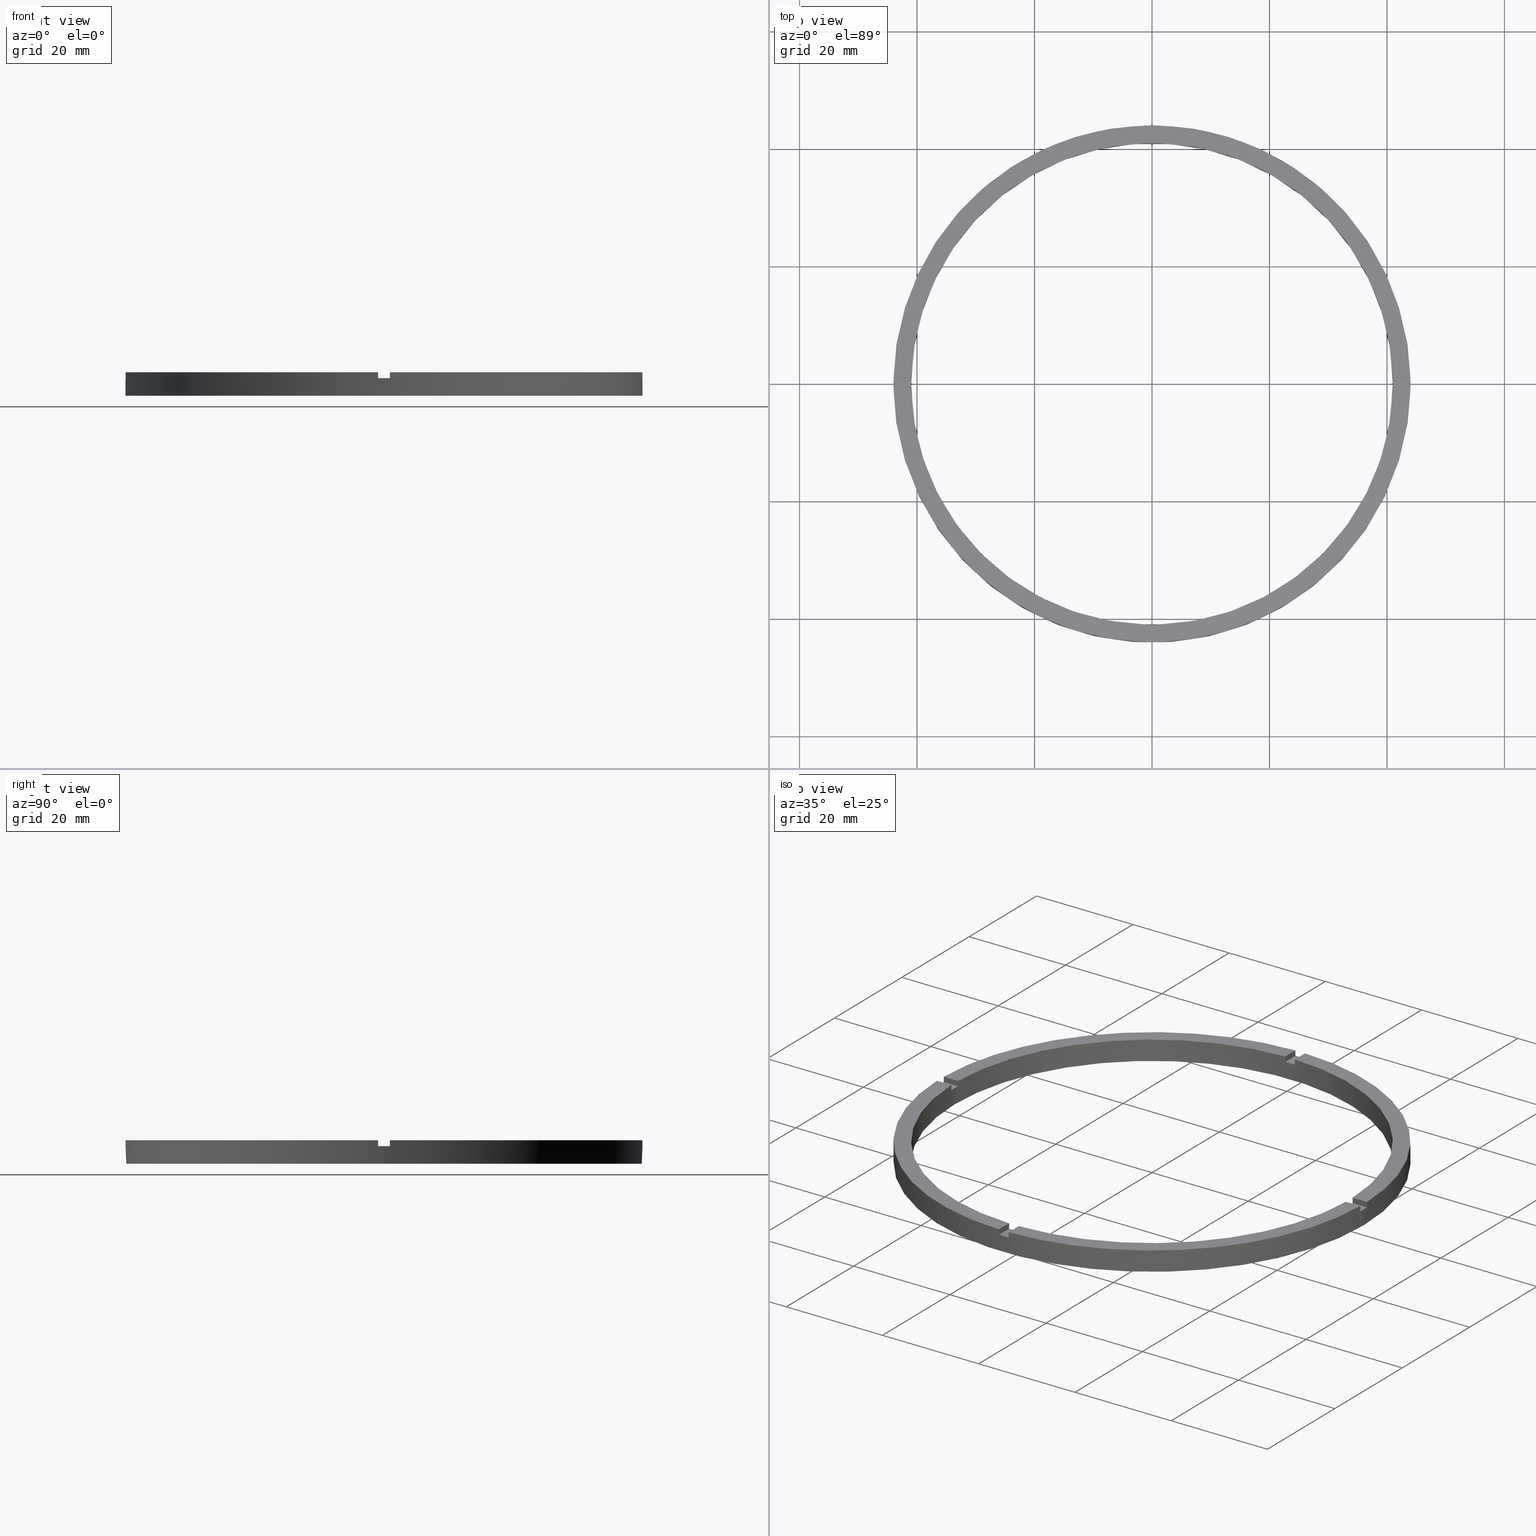
[diagram: canonical four-view strip — front | top / right | iso, engineering-drawing reading convention]
A machine part, canonical four-view strip (front | top / right | iso — engineering-drawing reading convention). The complete STEP part file that produces these views, byte-faithful:
ISO-10303-21;
HEADER;
FILE_DESCRIPTION (( 'STEP AP203' ),
    '1' );
FILE_NAME ('514180.step',
    '2024-12-26T02:45:21',
    ( 'MSI' ),
    ( '' ),
    'SwSTEP 2.0',
    'SolidWorks 2020',
    '' );
FILE_SCHEMA (( 'CONFIG_CONTROL_DESIGN' ));
ENDSEC;

DATA;
#1 = ORIENTED_EDGE ( 'NONE', *, *, #777, .T. ) ;
#2 = CIRCLE ( 'NONE', #607, 41.00000000000000000 ) ;
#3 = VERTEX_POINT ( 'NONE', #537 ) ;
#4 = EDGE_CURVE ( 'NONE', #451, #695, #588, .T. ) ;
#5 = ORIENTED_EDGE ( 'NONE', *, *, #253, .T. ) ;
#6 = AXIS2_PLACEMENT_3D ( 'NONE', #277, #331, #326 ) ;
#7 = FACE_OUTER_BOUND ( 'NONE', #704, .T. ) ;
#8 = CARTESIAN_POINT ( 'NONE',  ( 40.98780306383839189, -1.000000000000156541, 4.000000000000000000 ) ) ;
#9 = VERTEX_POINT ( 'NONE', #522 ) ;
#10 = EDGE_LOOP ( 'NONE', ( #716, #714, #87, #454, #176, #41 ) ) ;
#11 = CIRCLE ( 'NONE', #103, 44.00000000000000000 ) ;
#12 = VERTEX_POINT ( 'NONE', #458 ) ;
#13 = AXIS2_PLACEMENT_3D ( 'NONE', #111, #380, #75 ) ;
#14 = FACE_OUTER_BOUND ( 'NONE', #773, .T. ) ;
#15 = DIRECTION ( 'NONE',  ( 1.000000000000000000, 0.000000000000000000, 0.000000000000000000 ) ) ;
#16 = VECTOR ( 'NONE', #32, 1000.000000000000000 ) ;
#17 = LINE ( 'NONE', #149, #266 ) ;
#18 = EDGE_CURVE ( 'NONE', #256, #695, #567, .T. ) ;
#19 = LINE ( 'NONE', #734, #267 ) ;
#20 = CIRCLE ( 'NONE', #140, 44.00000000000000000 ) ;
#21 = VERTEX_POINT ( 'NONE', #754 ) ;
#22 = LINE ( 'NONE', #158, #287 ) ;
#23 = DIRECTION ( 'NONE',  ( -0.000000000000000000, -1.000000000000000000, -0.000000000000000000 ) ) ;
#24 = LINE ( 'NONE', #384, #278 ) ;
#25 = CIRCLE ( 'NONE', #195, 41.00000000000000000 ) ;
#26 = ORIENTED_EDGE ( 'NONE', *, *, #18, .T. ) ;
#27 = VECTOR ( 'NONE', #55, 1000.000000000000000 ) ;
#28 = LINE ( 'NONE', #284, #279 ) ;
#29 = FACE_OUTER_BOUND ( 'NONE', #480, .T. ) ;
#30 = VECTOR ( 'NONE', #35, 1000.000000000000000 ) ;
#31 = FACE_OUTER_BOUND ( 'NONE', #181, .T. ) ;
#32 = DIRECTION ( 'NONE',  ( -0.000000000000000000, -0.000000000000000000, -1.000000000000000000 ) ) ;
#33 = CIRCLE ( 'NONE', #639, 44.00000000000000000 ) ;
#34 = AXIS2_PLACEMENT_3D ( 'NONE', #119, #299, #233 ) ;
#35 = DIRECTION ( 'NONE',  ( 0.000000000000000000, 0.000000000000000000, 1.000000000000000000 ) ) ;
#36 = VECTOR ( 'NONE', #351, 1000.000000000000000 ) ;
#37 = VECTOR ( 'NONE', #611, 1000.000000000000000 ) ;
#38 = ORIENTED_EDGE ( 'NONE', *, *, #488, .T. ) ;
#39 = ORIENTED_EDGE ( 'NONE', *, *, #553, .F. ) ;
#40 = VECTOR ( 'NONE', #370, 1000.000000000000000 ) ;
#41 = ORIENTED_EDGE ( 'NONE', *, *, #136, .T. ) ;
#42 = FACE_BOUND ( 'NONE', #416, .T. ) ;
#43 = CIRCLE ( 'NONE', #653, 41.00000000000000000 ) ;
#44 = ORIENTED_EDGE ( 'NONE', *, *, #246, .F. ) ;
#45 = LINE ( 'NONE', #120, #305 ) ;
#46 = LINE ( 'NONE', #644, #36 ) ;
#47 = EDGE_CURVE ( 'NONE', #90, #531, #578, .T. ) ;
#48 = ORIENTED_EDGE ( 'NONE', *, *, #666, .F. ) ;
#49 = AXIS2_PLACEMENT_3D ( 'NONE', #106, #613, #631 ) ;
#50 = VECTOR ( 'NONE', #367, 1000.000000000000000 ) ;
#51 = CIRCLE ( 'NONE', #68, 44.00000000000000000 ) ;
#52 = APPROVAL ( #661, 'δָ��' ) ;
#53 = CARTESIAN_POINT ( 'NONE',  ( 0.000000000000000000, 0.000000000000000000, 4.000000000000000000 ) ) ;
#54 = VECTOR ( 'NONE', #159, 1000.000000000000000 ) ;
#55 = DIRECTION ( 'NONE',  ( 1.301042606982605074E-16, -1.000000000000000000, 0.000000000000000000 ) ) ;
#56 = LINE ( 'NONE', #352, #302 ) ;
#57 =( NAMED_UNIT ( * ) PLANE_ANGLE_UNIT ( ) SI_UNIT ( $, .RADIAN. ) );
#58 = VECTOR ( 'NONE', #387, 1000.000000000000000 ) ;
#59 = VECTOR ( 'NONE', #162, 1000.000000000000000 ) ;
#60 = ORIENTED_EDGE ( 'NONE', *, *, #487, .T. ) ;
#61 = LINE ( 'NONE', #336, #315 ) ;
#62 = CIRCLE ( 'NONE', #34, 41.00000000000000000 ) ;
#63 = LINE ( 'NONE', #189, #310 ) ;
#64 = DIRECTION ( 'NONE',  ( 1.301042606982605074E-16, -1.000000000000000000, 0.000000000000000000 ) ) ;
#65 = DIRECTION ( 'NONE',  ( 1.000000000000000000, 0.000000000000000000, 0.000000000000000000 ) ) ;
#66 = CYLINDRICAL_SURFACE ( 'NONE', #658, 41.00000000000000000 ) ;
#67 = DIRECTION ( 'NONE',  ( 0.000000000000000000, 0.000000000000000000, 1.000000000000000000 ) ) ;
#68 = AXIS2_PLACEMENT_3D ( 'NONE', #434, #527, #605 ) ;
#69 = CARTESIAN_POINT ( 'NONE',  ( 33.99999999999998579, 0.9999999999998430145, 3.000000000000000000 ) ) ;
#70 = ORIENTED_EDGE ( 'NONE', *, *, #245, .F. ) ;
#71 = LINE ( 'NONE', #276, #328 ) ;
#72 = LINE ( 'NONE', #401, #314 ) ;
#73 = DIRECTION ( 'NONE',  ( 0.000000000000000000, -0.000000000000000000, 1.000000000000000000 ) ) ;
#74 = DIRECTION ( 'NONE',  ( -0.000000000000000000, 0.000000000000000000, 1.000000000000000000 ) ) ;
#75 = DIRECTION ( 'NONE',  ( 1.000000000000000000, 0.000000000000000000, -0.000000000000000000 ) ) ;
#76 = VECTOR ( 'NONE', #306, 1000.000000000000000 ) ;
#77 = LINE ( 'NONE', #430, #591 ) ;
#78 = CARTESIAN_POINT ( 'NONE',  ( -44.00000000000000000, 0.000000000000000000, 3.000000000000000000 ) ) ;
#79 = FACE_OUTER_BOUND ( 'NONE', #10, .T. ) ;
#80 = CARTESIAN_POINT ( 'NONE',  ( 0.000000000000000000, 0.000000000000000000, 0.000000000000000000 ) ) ;
#81 = DIRECTION ( 'NONE',  ( 1.000000000000000000, 0.000000000000000000, 0.000000000000000000 ) ) ;
#82 = CARTESIAN_POINT ( 'NONE',  ( -41.00000000000000000, 0.000000000000000000, 0.000000000000000000 ) ) ;
#83 = EDGE_CURVE ( 'NONE', #86, #191, #61, .T. ) ;
#84 = FACE_OUTER_BOUND ( 'NONE', #481, .T. ) ;
#85 = VERTEX_POINT ( 'NONE', #412 ) ;
#86 = VERTEX_POINT ( 'NONE', #78 ) ;
#87 = ORIENTED_EDGE ( 'NONE', *, *, #420, .T. ) ;
#88 = PLANE ( 'NONE',  #13 ) ;
#89 = CARTESIAN_POINT ( 'NONE',  ( 44.00000000000000000, 5.388445916248353619E-15, 3.000000000000000000 ) ) ;
#90 = VERTEX_POINT ( 'NONE', #102 ) ;
#91 = ADVANCED_FACE ( 'NONE', ( #579 ), #66, .F. ) ;
#92 = DIRECTION ( 'NONE',  ( 1.000000000000000000, 0.000000000000000000, 0.000000000000000000 ) ) ;
#93 = CARTESIAN_POINT ( 'NONE',  ( 44.00000000000000000, 5.388445916248353619E-15, 4.000000000000000000 ) ) ;
#94 = EDGE_CURVE ( 'NONE', #12, #9, #308, .T. ) ;
#95 = CC_DESIGN_PERSON_AND_ORGANIZATION_ASSIGNMENT ( #229, #622, ( #109 ) ) ;
#96 = APPROVAL_ROLE ( '' ) ;
#97 = DIRECTION ( 'NONE',  ( 1.000000000000000000, 0.000000000000000000, 0.000000000000000000 ) ) ;
#98 = CARTESIAN_POINT ( 'NONE',  ( -34.00000000000018474, -1.000000000000027534, 3.000000000000000000 ) ) ;
#99 = AXIS2_PLACEMENT_3D ( 'NONE', #218, #462, #349 ) ;
#100 = EDGE_CURVE ( 'NONE', #187, #9, #546, .T. ) ;
#101 = DIRECTION ( 'NONE',  ( 1.000000000000000000, 0.000000000000000000, 0.000000000000000000 ) ) ;
#102 = CARTESIAN_POINT ( 'NONE',  ( -40.98780306383839900, 0.9999999999999711342, 3.000000000000000000 ) ) ;
#103 = AXIS2_PLACEMENT_3D ( 'NONE', #378, #282, #296 ) ;
#104 = EDGE_CURVE ( 'NONE', #705, #207, #25, .T. ) ;
#105 = CARTESIAN_POINT ( 'NONE',  ( -1.000000000000025979, 43.98863489584553577, 3.000000000000000000 ) ) ;
#106 = CARTESIAN_POINT ( 'NONE',  ( 0.000000000000000000, 0.000000000000000000, 3.000000000000000000 ) ) ;
#107 = EDGE_CURVE ( 'NONE', #329, #473, #43, .T. ) ;
#108 = DIRECTION ( 'NONE',  ( 0.000000000000000000, 0.000000000000000000, 1.000000000000000000 ) ) ;
#109 = SECURITY_CLASSIFICATION ( '', '', #399 ) ;
#110 = DIRECTION ( 'NONE',  ( -1.000000000000000000, -6.505213034913025371E-17, 0.000000000000000000 ) ) ;
#111 = CARTESIAN_POINT ( 'NONE',  ( 0.000000000000000000, 0.000000000000000000, 4.000000000000000000 ) ) ;
#112 = DIRECTION ( 'NONE',  ( 1.000000000000000000, 0.000000000000000000, -0.000000000000000000 ) ) ;
#113 = CARTESIAN_POINT ( 'NONE',  ( 0.000000000000000000, 0.000000000000000000, 0.000000000000000000 ) ) ;
#114 = EDGE_CURVE ( 'NONE', #260, #333, #574, .T. ) ;
#115 = DIRECTION ( 'NONE',  ( 1.000000000000000000, 0.000000000000000000, 0.000000000000000000 ) ) ;
#116 = DIRECTION ( 'NONE',  ( 0.000000000000000000, 0.000000000000000000, 1.000000000000000000 ) ) ;
#117 = APPROVAL ( #539, 'δָ��' ) ;
#118 = DIRECTION ( 'NONE',  ( 0.000000000000000000, 0.000000000000000000, 1.000000000000000000 ) ) ;
#119 = CARTESIAN_POINT ( 'NONE',  ( 0.000000000000000000, 0.000000000000000000, 4.000000000000000000 ) ) ;
#120 = CARTESIAN_POINT ( 'NONE',  ( -34.00000000000018474, 0.9999999999999724665, 3.000000000000000000 ) ) ;
#121 = MANIFOLD_SOLID_BREP ( '�г�-����1', #575 ) ;
#122 = AXIS2_PLACEMENT_3D ( 'NONE', #635, #680, #65 ) ;
#123 = DIRECTION ( 'NONE',  ( 0.000000000000000000, 0.000000000000000000, 1.000000000000000000 ) ) ;
#124 = PERSON_AND_ORGANIZATION_ROLE ( 'creator' ) ;
#125 = EDGE_CURVE ( 'NONE', #329, #431, #56, .T. ) ;
#126 = CIRCLE ( 'NONE', #696, 44.00000000000000000 ) ;
#127 = DIRECTION ( 'NONE',  ( 0.000000000000000000, 0.000000000000000000, 1.000000000000000000 ) ) ;
#128 = FACE_OUTER_BOUND ( 'NONE', #332, .T. ) ;
#129 = ADVANCED_FACE ( 'NONE', ( #29 ), #145, .F. ) ;
#130 = AXIS2_PLACEMENT_3D ( 'NONE', #688, #604, #637 ) ;
#131 = CARTESIAN_POINT ( 'NONE',  ( -40.98780306383839900, -1.000000000000028866, 3.000000000000000000 ) ) ;
#132 = DATE_TIME_ROLE ( 'classification_date' ) ;
#133 = CARTESIAN_POINT ( 'NONE',  ( -40.98780306383839900, 0.9999999999999711342, 4.000000000000000000 ) ) ;
#134 = CC_DESIGN_SECURITY_CLASSIFICATION ( #109, ( #406 ) ) ;
#135 = DIRECTION ( 'NONE',  ( -0.000000000000000000, -1.000000000000000000, -0.000000000000000000 ) ) ;
#136 = EDGE_CURVE ( 'NONE', #21, #701, #572, .T. ) ;
#137 = AXIS2_PLACEMENT_3D ( 'NONE', #113, #608, #673 ) ;
#138 = PLANE ( 'NONE',  #215 ) ;
#139 = CARTESIAN_POINT ( 'NONE',  ( 0.000000000000000000, 0.000000000000000000, 4.000000000000000000 ) ) ;
#140 = AXIS2_PLACEMENT_3D ( 'NONE', #389, #116, #153 ) ;
#141 = CARTESIAN_POINT ( 'NONE',  ( 0.000000000000000000, 0.000000000000000000, 4.000000000000000000 ) ) ;
#142 = DIRECTION ( 'NONE',  ( 0.000000000000000000, 0.000000000000000000, 1.000000000000000000 ) ) ;
#143 = EDGE_CURVE ( 'NONE', #260, #85, #576, .T. ) ;
#144 = LINE ( 'NONE', #439, #545 ) ;
#145 = PLANE ( 'NONE',  #682 ) ;
#146 = APPROVAL_STATUS ( 'not_yet_approved' ) ;
#147 = DIRECTION ( 'NONE',  ( -1.301042606982605074E-16, 1.000000000000000000, 0.000000000000000000 ) ) ;
#148 = VERTEX_POINT ( 'NONE', #676 ) ;
#149 = CARTESIAN_POINT ( 'NONE',  ( -1.000000000000159650, -34.00000000000017764, 3.000000000000000000 ) ) ;
#150 = DIRECTION ( 'NONE',  ( 0.000000000000000000, 0.000000000000000000, 1.000000000000000000 ) ) ;
#151 = CARTESIAN_POINT ( 'NONE',  ( 0.000000000000000000, 0.000000000000000000, 4.000000000000000000 ) ) ;
#152 = DIRECTION ( 'NONE',  ( -0.000000000000000000, -0.000000000000000000, -1.000000000000000000 ) ) ;
#153 = DIRECTION ( 'NONE',  ( 1.000000000000000000, 0.000000000000000000, 0.000000000000000000 ) ) ;
#154 = ORIENTED_EDGE ( 'NONE', *, *, #289, .F. ) ;
#155 = EDGE_CURVE ( 'NONE', #12, #148, #288, .T. ) ;
#156 = DIRECTION ( 'NONE',  ( 1.000000000000000000, 0.000000000000000000, -0.000000000000000000 ) ) ;
#157 = DIRECTION ( 'NONE',  ( 1.000000000000000000, 0.000000000000000000, 0.000000000000000000 ) ) ;
#158 = CARTESIAN_POINT ( 'NONE',  ( 40.98780306383840610, 0.9999999999998434586, 4.000000000000000000 ) ) ;
#159 = DIRECTION ( 'NONE',  ( 1.000000000000000000, 6.505213034913025371E-17, 0.000000000000000000 ) ) ;
#160 = PERSON_AND_ORGANIZATION_ROLE ( 'design_supplier' ) ;
#161 = EDGE_CURVE ( 'NONE', #86, #600, #11, .T. ) ;
#162 = DIRECTION ( 'NONE',  ( -0.000000000000000000, -0.000000000000000000, -1.000000000000000000 ) ) ;
#163 = AXIS2_PLACEMENT_3D ( 'NONE', #53, #668, #335 ) ;
#164 = EDGE_CURVE ( 'NONE', #593, #713, #560, .T. ) ;
#165 = DIRECTION ( 'NONE',  ( 0.000000000000000000, 0.000000000000000000, 1.000000000000000000 ) ) ;
#166 = CC_DESIGN_PERSON_AND_ORGANIZATION_ASSIGNMENT ( #223, #524, ( #693 ) ) ;
#167 = ADVANCED_FACE ( 'NONE', ( #569 ), #601, .F. ) ;
#168 = ORIENTED_EDGE ( 'NONE', *, *, #523, .F. ) ;
#169 = EDGE_CURVE ( 'NONE', #207, #705, #293, .T. ) ;
#170 = ORIENTED_EDGE ( 'NONE', *, *, #47, .T. ) ;
#171 = ORIENTED_EDGE ( 'NONE', *, *, #523, .T. ) ;
#172 = ORIENTED_EDGE ( 'NONE', *, *, #599, .T. ) ;
#173 = ORIENTED_EDGE ( 'NONE', *, *, #518, .T. ) ;
#174 = ADVANCED_FACE ( 'NONE', ( #14 ), #536, .T. ) ;
#175 = VERTEX_POINT ( 'NONE', #702 ) ;
#176 = ORIENTED_EDGE ( 'NONE', *, *, #488, .F. ) ;
#177 = ORIENTED_EDGE ( 'NONE', *, *, #245, .T. ) ;
#178 = ORIENTED_EDGE ( 'NONE', *, *, #533, .F. ) ;
#179 = ORIENTED_EDGE ( 'NONE', *, *, #507, .F. ) ;
#180 = ORIENTED_EDGE ( 'NONE', *, *, #104, .F. ) ;
#181 = EDGE_LOOP ( 'NONE', ( #448, #723, #595, #196 ) ) ;
#182 = ORIENTED_EDGE ( 'NONE', *, *, #418, .F. ) ;
#183 = CARTESIAN_POINT ( 'NONE',  ( 33.99999999999998579, -1.000000000000156986, 4.000000000000000000 ) ) ;
#184 = EDGE_LOOP ( 'NONE', ( #500, #735, #185, #471 ) ) ;
#185 = ORIENTED_EDGE ( 'NONE', *, *, #107, .F. ) ;
#186 = ORIENTED_EDGE ( 'NONE', *, *, #136, .F. ) ;
#187 = VERTEX_POINT ( 'NONE', #461 ) ;
#188 = ORIENTED_EDGE ( 'NONE', *, *, #125, .T. ) ;
#189 = CARTESIAN_POINT ( 'NONE',  ( 0.9999999999999740208, 33.99999999999999289, 3.000000000000000000 ) ) ;
#190 = ORIENTED_EDGE ( 'NONE', *, *, #697, .T. ) ;
#191 = VERTEX_POINT ( 'NONE', #764 ) ;
#192 = ORIENTED_EDGE ( 'NONE', *, *, #357, .F. ) ;
#193 = EDGE_CURVE ( 'NONE', #329, #249, #17, .T. ) ;
#194 = ORIENTED_EDGE ( 'NONE', *, *, #246, .T. ) ;
#195 = AXIS2_PLACEMENT_3D ( 'NONE', #674, #437, #358 ) ;
#196 = ORIENTED_EDGE ( 'NONE', *, *, #337, .T. ) ;
#197 = ORIENTED_EDGE ( 'NONE', *, *, #164, .F. ) ;
#198 = ORIENTED_EDGE ( 'NONE', *, *, #307, .F. ) ;
#199 = ORIENTED_EDGE ( 'NONE', *, *, #47, .F. ) ;
#200 = CARTESIAN_POINT ( 'NONE',  ( 40.98780306383839189, -1.000000000000156541, 4.000000000000000000 ) ) ;
#201 = ORIENTED_EDGE ( 'NONE', *, *, #730, .F. ) ;
#202 = DESIGN_CONTEXT ( 'detailed design', #427, 'design' ) ;
#203 = ORIENTED_EDGE ( 'NONE', *, *, #83, .T. ) ;
#204 = DIRECTION ( 'NONE',  ( 1.000000000000000000, 1.951563910473907735E-16, -0.000000000000000000 ) ) ;
#205 = ORIENTED_EDGE ( 'NONE', *, *, #664, .F. ) ;
#206 = ORIENTED_EDGE ( 'NONE', *, *, #161, .T. ) ;
#207 = VERTEX_POINT ( 'NONE', #656 ) ;
#208 = CARTESIAN_POINT ( 'NONE',  ( 0.000000000000000000, 0.000000000000000000, 3.000000000000000000 ) ) ;
#209 = APPROVAL_ROLE ( '' ) ;
#210 = ORIENTED_EDGE ( 'NONE', *, *, #624, .T. ) ;
#211 = CARTESIAN_POINT ( 'NONE',  ( 0.9999999999999740208, 33.99999999999999289, 4.000000000000000000 ) ) ;
#212 = VERTEX_POINT ( 'NONE', #131 ) ;
#213 = CARTESIAN_POINT ( 'NONE',  ( -34.00000000000018474, -1.000000000000027534, 4.000000000000000000 ) ) ;
#214 = ORIENTED_EDGE ( 'NONE', *, *, #666, .T. ) ;
#215 = AXIS2_PLACEMENT_3D ( 'NONE', #340, #626, #511 ) ;
#216 = ORIENTED_EDGE ( 'NONE', *, *, #657, .F. ) ;
#217 = COORDINATED_UNIVERSAL_TIME_OFFSET ( 8, 0, .AHEAD. ) ;
#218 = CARTESIAN_POINT ( 'NONE',  ( -1.000000000000025979, 33.99999999999999289, 3.000000000000000000 ) ) ;
#219 = CARTESIAN_POINT ( 'NONE',  ( -43.98863489584554287, 0.9999999999999705791, 3.000000000000000000 ) ) ;
#220 = DATE_AND_TIME ( #760, #479 ) ;
#221 = DIRECTION ( 'NONE',  ( 0.000000000000000000, 0.000000000000000000, 1.000000000000000000 ) ) ;
#222 = ORIENTED_EDGE ( 'NONE', *, *, #404, .F. ) ;
#223 = PERSON_AND_ORGANIZATION ( #727, #489 ) ;
#224 = CARTESIAN_POINT ( 'NONE',  ( 0.9999999999999740208, 43.98863489584554287, 4.000000000000000000 ) ) ;
#225 = CARTESIAN_POINT ( 'NONE',  ( -1.000000000000025979, 40.98780306383839900, 4.000000000000000000 ) ) ;
#226 = COORDINATED_UNIVERSAL_TIME_OFFSET ( 8, 0, .AHEAD. ) ;
#227 = VERTEX_POINT ( 'NONE', #561 ) ;
#228 = AXIS2_PLACEMENT_3D ( 'NONE', #609, #311, #110 ) ;
#229 = PERSON_AND_ORGANIZATION ( #727, #489 ) ;
#230 = PERSON_AND_ORGANIZATION ( #727, #489 ) ;
#231 = DIRECTION ( 'NONE',  ( -1.951563910473907735E-16, 1.000000000000000000, 0.000000000000000000 ) ) ;
#232 = CARTESIAN_POINT ( 'NONE',  ( 0.000000000000000000, 0.000000000000000000, 0.000000000000000000 ) ) ;
#233 = DIRECTION ( 'NONE',  ( 1.000000000000000000, 0.000000000000000000, 0.000000000000000000 ) ) ;
#234 = ORIENTED_EDGE ( 'NONE', *, *, #507, .T. ) ;
#235 = APPROVAL_PERSON_ORGANIZATION ( #230, #52, #96 ) ;
#236 = DIRECTION ( 'NONE',  ( 0.000000000000000000, 0.000000000000000000, 1.000000000000000000 ) ) ;
#237 = LINE ( 'NONE', #731, #501 ) ;
#238 = LOCAL_TIME ( 10, 45, 21.00000000000000000, #226 ) ;
#239 = ORIENTED_EDGE ( 'NONE', *, *, #164, .T. ) ;
#240 = CARTESIAN_POINT ( 'NONE',  ( 0.9999999999998414602, -40.98780306383840610, 3.000000000000000000 ) ) ;
#241 = FACE_OUTER_BOUND ( 'NONE', #445, .T. ) ;
#242 = APPROVAL_DATE_TIME ( #751, #117 ) ;
#243 = COORDINATED_UNIVERSAL_TIME_OFFSET ( 8, 0, .AHEAD. ) ;
#244 = DIRECTION ( 'NONE',  ( -0.000000000000000000, -0.000000000000000000, -1.000000000000000000 ) ) ;
#245 = EDGE_CURVE ( 'NONE', #713, #473, #72, .T. ) ;
#246 = EDGE_CURVE ( 'NONE', #21, #330, #317, .T. ) ;
#247 = CC_DESIGN_APPROVAL ( #117, ( #406 ) ) ;
#248 = LINE ( 'NONE', #69, #250 ) ;
#249 = VERTEX_POINT ( 'NONE', #323 ) ;
#250 = VECTOR ( 'NONE', #636, 1000.000000000000000 ) ;
#251 = AXIS2_PLACEMENT_3D ( 'NONE', #758, #150, #440 ) ;
#252 = AXIS2_PLACEMENT_3D ( 'NONE', #346, #152, #291 ) ;
#253 = EDGE_CURVE ( 'NONE', #256, #333, #325, .T. ) ;
#254 = ORIENTED_EDGE ( 'NONE', *, *, #681, .T. ) ;
#255 = EDGE_LOOP ( 'NONE', ( #517, #750, #534, #738 ) ) ;
#256 = VERTEX_POINT ( 'NONE', #407 ) ;
#257 = ORIENTED_EDGE ( 'NONE', *, *, #100, .T. ) ;
#258 = AXIS2_PLACEMENT_3D ( 'NONE', #385, #441, #530 ) ;
#259 = EDGE_CURVE ( 'NONE', #436, #478, #327, .T. ) ;
#260 = VERTEX_POINT ( 'NONE', #774 ) ;
#261 = DIRECTION ( 'NONE',  ( 1.000000000000000000, 0.000000000000000000, 0.000000000000000000 ) ) ;
#262 = LINE ( 'NONE', #383, #27 ) ;
#263 = ORIENTED_EDGE ( 'NONE', *, *, #664, .T. ) ;
#264 = CARTESIAN_POINT ( 'NONE',  ( 43.98863489584554287, 0.9999999999998436806, 3.000000000000000000 ) ) ;
#265 = FACE_OUTER_BOUND ( 'NONE', #419, .T. ) ;
#266 = VECTOR ( 'NONE', #64, 1000.000000000000000 ) ;
#267 = VECTOR ( 'NONE', #23, 1000.000000000000000 ) ;
#268 = EDGE_CURVE ( 'NONE', #779, #451, #62, .T. ) ;
#269 = PLANE ( 'NONE',  #620 ) ;
#270 = LINE ( 'NONE', #375, #16 ) ;
#271 = ORIENTED_EDGE ( 'NONE', *, *, #697, .F. ) ;
#272 = CARTESIAN_POINT ( 'NONE',  ( 0.000000000000000000, 0.000000000000000000, 3.000000000000000000 ) ) ;
#273 = FACE_OUTER_BOUND ( 'NONE', #255, .T. ) ;
#274 = CARTESIAN_POINT ( 'NONE',  ( 43.98863489584553577, -1.000000000000156319, 3.000000000000000000 ) ) ;
#275 = CYLINDRICAL_SURFACE ( 'NONE', #252, 41.00000000000000000 ) ;
#276 = CARTESIAN_POINT ( 'NONE',  ( 43.98863489584554287, 0.9999999999998436806, 4.000000000000000000 ) ) ;
#277 = CARTESIAN_POINT ( 'NONE',  ( 0.000000000000000000, 0.000000000000000000, 3.000000000000000000 ) ) ;
#278 = VECTOR ( 'NONE', #603, 1000.000000000000000 ) ;
#279 = VECTOR ( 'NONE', #528, 1000.000000000000000 ) ;
#280 = DIRECTION ( 'NONE',  ( 1.000000000000000000, 0.000000000000000000, -0.000000000000000000 ) ) ;
#281 = VECTOR ( 'NONE', #345, 1000.000000000000000 ) ;
#282 = DIRECTION ( 'NONE',  ( 0.000000000000000000, 0.000000000000000000, 1.000000000000000000 ) ) ;
#283 = CIRCLE ( 'NONE', #382, 44.00000000000000000 ) ;
#284 = CARTESIAN_POINT ( 'NONE',  ( 0.9999999999998404610, -34.00000000000017764, 3.000000000000000000 ) ) ;
#285 = CARTESIAN_POINT ( 'NONE',  ( 43.98863489584553577, -1.000000000000156319, 4.000000000000000000 ) ) ;
#286 = DIRECTION ( 'NONE',  ( 1.000000000000000000, 0.000000000000000000, 0.000000000000000000 ) ) ;
#287 = VECTOR ( 'NONE', #354, 1000.000000000000000 ) ;
#288 = CIRCLE ( 'NONE', #477, 41.00000000000000000 ) ;
#289 = EDGE_CURVE ( 'NONE', #436, #334, #587, .T. ) ;
#290 = CIRCLE ( 'NONE', #122, 44.00000000000000000 ) ;
#291 = DIRECTION ( 'NONE',  ( -1.000000000000000000, 0.000000000000000000, 0.000000000000000000 ) ) ;
#292 = ORIENTED_EDGE ( 'NONE', *, *, #657, .T. ) ;
#293 = CIRCLE ( 'NONE', #654, 41.00000000000000000 ) ;
#294 = LINE ( 'NONE', #133, #563 ) ;
#295 = VECTOR ( 'NONE', #204, 1000.000000000000000 ) ;
#296 = DIRECTION ( 'NONE',  ( 1.000000000000000000, 0.000000000000000000, 0.000000000000000000 ) ) ;
#297 =( LENGTH_UNIT ( ) NAMED_UNIT ( * ) SI_UNIT ( .MILLI., .METRE. ) );
#298 = LINE ( 'NONE', #213, #295 ) ;
#299 = DIRECTION ( 'NONE',  ( 0.000000000000000000, 0.000000000000000000, 1.000000000000000000 ) ) ;
#300 = CIRCLE ( 'NONE', #365, 41.00000000000000000 ) ;
#301 = DIRECTION ( 'NONE',  ( 0.000000000000000000, 0.000000000000000000, 1.000000000000000000 ) ) ;
#302 = VECTOR ( 'NONE', #691, 1000.000000000000000 ) ;
#303 = DIRECTION ( 'NONE',  ( 0.000000000000000000, 0.000000000000000000, 1.000000000000000000 ) ) ;
#304 = CARTESIAN_POINT ( 'NONE',  ( 0.9999999999998416822, -43.98863489584554287, 3.000000000000000000 ) ) ;
#305 = VECTOR ( 'NONE', #671, 1000.000000000000000 ) ;
#306 = DIRECTION ( 'NONE',  ( -0.000000000000000000, -0.000000000000000000, -1.000000000000000000 ) ) ;
#307 = EDGE_CURVE ( 'NONE', #700, #212, #586, .T. ) ;
#308 = LINE ( 'NONE', #341, #40 ) ;
#309 = ORIENTED_EDGE ( 'NONE', *, *, #566, .T. ) ;
#310 = VECTOR ( 'NONE', #510, 1000.000000000000000 ) ;
#311 = DIRECTION ( 'NONE',  ( -6.505213034913025371E-17, 1.000000000000000000, 0.000000000000000000 ) ) ;
#312 = APPLICATION_PROTOCOL_DEFINITION ( 'international standard', 'config_control_design', 1994, #427 ) ;
#313 = ADVANCED_FACE ( 'NONE', ( #322 ), #651, .T. ) ;
#314 = VECTOR ( 'NONE', #484, 1000.000000000000000 ) ;
#315 = VECTOR ( 'NONE', #598, 1000.000000000000000 ) ;
#316 = LINE ( 'NONE', #211, #583 ) ;
#317 = LINE ( 'NONE', #8, #589 ) ;
#318 = ADVANCED_FACE ( 'NONE', ( #79 ), #647, .T. ) ;
#319 = VECTOR ( 'NONE', #516, 1000.000000000000000 ) ;
#320 = AXIS2_PLACEMENT_3D ( 'NONE', #368, #67, #112 ) ;
#321 = EDGE_LOOP ( 'NONE', ( #725, #205 ) ) ;
#322 = FACE_OUTER_BOUND ( 'NONE', #184, .T. ) ;
#323 = CARTESIAN_POINT ( 'NONE',  ( -1.000000000000158318, -43.98863489584553577, 3.000000000000000000 ) ) ;
#324 = ORIENTED_EDGE ( 'NONE', *, *, #584, .T. ) ;
#325 = LINE ( 'NONE', #710, #59 ) ;
#326 = DIRECTION ( 'NONE',  ( 1.000000000000000000, 0.000000000000000000, 0.000000000000000000 ) ) ;
#327 = LINE ( 'NONE', #93, #590 ) ;
#328 = VECTOR ( 'NONE', #606, 1000.000000000000000 ) ;
#329 = VERTEX_POINT ( 'NONE', #632 ) ;
#330 = VERTEX_POINT ( 'NONE', #200 ) ;
#331 = DIRECTION ( 'NONE',  ( 0.000000000000000000, 0.000000000000000000, 1.000000000000000000 ) ) ;
#332 = EDGE_LOOP ( 'NONE', ( #186, #194, #254, #444 ) ) ;
#333 = VERTEX_POINT ( 'NONE', #105 ) ;
#334 = VERTEX_POINT ( 'NONE', #264 ) ;
#335 = DIRECTION ( 'NONE',  ( 1.000000000000000000, 0.000000000000000000, -0.000000000000000000 ) ) ;
#336 = CARTESIAN_POINT ( 'NONE',  ( -44.00000000000000000, 0.000000000000000000, 4.000000000000000000 ) ) ;
#337 = EDGE_CURVE ( 'NONE', #12, #260, #63, .T. ) ;
#338 = ADVANCED_FACE ( 'NONE', ( #580 ), #421, .F. ) ;
#339 = PLANE ( 'NONE',  #163 ) ;
#340 = CARTESIAN_POINT ( 'NONE',  ( 0.000000000000000000, 0.000000000000000000, 3.000000000000000000 ) ) ;
#341 = CARTESIAN_POINT ( 'NONE',  ( 0.9999999999999740208, 40.98780306383839900, 4.000000000000000000 ) ) ;
#342 = CARTESIAN_POINT ( 'NONE',  ( 0.000000000000000000, 0.000000000000000000, 4.000000000000000000 ) ) ;
#343 = AXIS2_PLACEMENT_3D ( 'NONE', #686, #118, #156 ) ;
#344 = EDGE_CURVE ( 'NONE', #9, #85, #316, .T. ) ;
#346 = CARTESIAN_POINT ( 'NONE',  ( 0.000000000000000000, 0.000000000000000000, 4.000000000000000000 ) ) ;
#345 = DIRECTION ( 'NONE',  ( 1.000000000000000000, 6.505213034913025371E-17, 0.000000000000000000 ) ) ;
#347 = DIRECTION ( 'NONE',  ( 1.000000000000000000, 0.000000000000000000, 0.000000000000000000 ) ) ;
#348 = CARTESIAN_POINT ( 'NONE',  ( 33.99999999999998579, -1.000000000000156986, 3.000000000000000000 ) ) ;
#349 = DIRECTION ( 'NONE',  ( 0.000000000000000000, 0.000000000000000000, 1.000000000000000000 ) ) ;
#350 = PLANE ( 'NONE',  #663 ) ;
#351 = DIRECTION ( 'NONE',  ( -0.000000000000000000, -0.000000000000000000, -1.000000000000000000 ) ) ;
#352 = CARTESIAN_POINT ( 'NONE',  ( -1.000000000000158540, -40.98780306383839189, 4.000000000000000000 ) ) ;
#353 = AXIS2_PLACEMENT_3D ( 'NONE', #361, #395, #157 ) ;
#354 = DIRECTION ( 'NONE',  ( -0.000000000000000000, -0.000000000000000000, -1.000000000000000000 ) ) ;
#355 = DIRECTION ( 'NONE',  ( 0.000000000000000000, 0.000000000000000000, 1.000000000000000000 ) ) ;
#356 = CARTESIAN_POINT ( 'NONE',  ( -40.98780306383839900, -1.000000000000028866, 4.000000000000000000 ) ) ;
#357 = EDGE_CURVE ( 'NONE', #665, #334, #71, .T. ) ;
#358 = DIRECTION ( 'NONE',  ( 1.000000000000000000, 0.000000000000000000, 0.000000000000000000 ) ) ;
#359 = PLANE ( 'NONE',  #99 ) ;
#360 = MECHANICAL_CONTEXT ( 'NONE', #670, 'mechanical' ) ;
#361 = CARTESIAN_POINT ( 'NONE',  ( 0.000000000000000000, 0.000000000000000000, 3.000000000000000000 ) ) ;
#362 = DIRECTION ( 'NONE',  ( 1.000000000000000000, 0.000000000000000000, 0.000000000000000000 ) ) ;
#363 =( NAMED_UNIT ( * ) SI_UNIT ( $, .STERADIAN. ) SOLID_ANGLE_UNIT ( ) );
#364 = CARTESIAN_POINT ( 'NONE',  ( 0.000000000000000000, 0.000000000000000000, 3.000000000000000000 ) ) ;
#365 = AXIS2_PLACEMENT_3D ( 'NONE', #364, #623, #97 ) ;
#366 = EDGE_CURVE ( 'NONE', #531, #705, #77, .T. ) ;
#367 = DIRECTION ( 'NONE',  ( 1.000000000000000000, 1.951563910473907735E-16, -0.000000000000000000 ) ) ;
#368 = CARTESIAN_POINT ( 'NONE',  ( 0.000000000000000000, 0.000000000000000000, 3.000000000000000000 ) ) ;
#369 = DIRECTION ( 'NONE',  ( 0.000000000000000000, 0.000000000000000000, 1.000000000000000000 ) ) ;
#370 = DIRECTION ( 'NONE',  ( 0.000000000000000000, 0.000000000000000000, 1.000000000000000000 ) ) ;
#371 = DIRECTION ( 'NONE',  ( 1.000000000000000000, 0.000000000000000000, 0.000000000000000000 ) ) ;
#372 = ADVANCED_FACE ( 'NONE', ( #84 ), #630, .T. ) ;
#373 = EDGE_CURVE ( 'NONE', #713, #330, #2, .T. ) ;
#374 = VECTOR ( 'NONE', #532, 1000.000000000000000 ) ;
#375 = CARTESIAN_POINT ( 'NONE',  ( -1.000000000000025979, 40.98780306383839900, 4.000000000000000000 ) ) ;
#376 = ORIENTED_EDGE ( 'NONE', *, *, #125, .F. ) ;
#377 = APPROVAL ( #146, 'δָ��' ) ;
#378 = CARTESIAN_POINT ( 'NONE',  ( 0.000000000000000000, 0.000000000000000000, 3.000000000000000000 ) ) ;
#379 = PLANE ( 'NONE',  #506 ) ;
#380 = DIRECTION ( 'NONE',  ( 0.000000000000000000, 0.000000000000000000, 1.000000000000000000 ) ) ;
#381 = DIRECTION ( 'NONE',  ( 0.000000000000000000, 1.000000000000000000, 0.000000000000000000 ) ) ;
#382 = AXIS2_PLACEMENT_3D ( 'NONE', #771, #303, #81 ) ;
#383 = CARTESIAN_POINT ( 'NONE',  ( -1.000000000000159650, -34.00000000000017764, 4.000000000000000000 ) ) ;
#384 = CARTESIAN_POINT ( 'NONE',  ( 33.99999999999998579, 0.9999999999998430145, 4.000000000000000000 ) ) ;
#385 = CARTESIAN_POINT ( 'NONE',  ( 0.000000000000000000, 0.000000000000000000, 4.000000000000000000 ) ) ;
#386 = CARTESIAN_POINT ( 'NONE',  ( -1.000000000000158318, -43.98863489584553577, 4.000000000000000000 ) ) ;
#387 = DIRECTION ( 'NONE',  ( -1.301042606982605074E-16, 1.000000000000000000, -0.000000000000000000 ) ) ;
#388 = DIRECTION ( 'NONE',  ( 1.000000000000000000, 6.505213034913025371E-17, 0.000000000000000000 ) ) ;
#389 = CARTESIAN_POINT ( 'NONE',  ( 0.000000000000000000, 0.000000000000000000, 3.000000000000000000 ) ) ;
#390 = AXIS2_PLACEMENT_3D ( 'NONE', #411, #739, #101 ) ;
#391 = DIRECTION ( 'NONE',  ( -0.000000000000000000, 0.000000000000000000, 1.000000000000000000 ) ) ;
#392 = DIRECTION ( 'NONE',  ( -1.000000000000000000, 0.000000000000000000, 0.000000000000000000 ) ) ;
#393 = PERSON_AND_ORGANIZATION_ROLE ( 'design_owner' ) ;
#394 = ORIENTED_EDGE ( 'NONE', *, *, #487, .F. ) ;
#395 = DIRECTION ( 'NONE',  ( 0.000000000000000000, 0.000000000000000000, 1.000000000000000000 ) ) ;
#396 = AXIS2_PLACEMENT_3D ( 'NONE', #139, #123, #261 ) ;
#397 = ADVANCED_FACE ( 'NONE', ( #514 ), #763, .T. ) ;
#398 = CARTESIAN_POINT ( 'NONE',  ( 0.000000000000000000, 0.000000000000000000, 4.000000000000000000 ) ) ;
#399 = SECURITY_CLASSIFICATION_LEVEL ( 'unclassified' ) ;
#400 = DIRECTION ( 'NONE',  ( 0.000000000000000000, 0.000000000000000000, 1.000000000000000000 ) ) ;
#401 = CARTESIAN_POINT ( 'NONE',  ( 0.9999999999998414602, -40.98780306383840610, 4.000000000000000000 ) ) ;
#402 = ADVANCED_FACE ( 'NONE', ( #241 ), #746, .F. ) ;
#403 = ORIENTED_EDGE ( 'NONE', *, *, #169, .F. ) ;
#404 = EDGE_CURVE ( 'NONE', #665, #85, #504, .T. ) ;
#405 = AXIS2_PLACEMENT_3D ( 'NONE', #780, #615, #549 ) ;
#406 = PRODUCT_DEFINITION_FORMATION_WITH_SPECIFIED_SOURCE ( '�κ�', '', #761, .NOT_KNOWN. ) ;
#407 = CARTESIAN_POINT ( 'NONE',  ( -1.000000000000025979, 43.98863489584553577, 4.000000000000000000 ) ) ;
#408 = CARTESIAN_POINT ( 'NONE',  ( 0.000000000000000000, 0.000000000000000000, 3.000000000000000000 ) ) ;
#409 = CC_DESIGN_PERSON_AND_ORGANIZATION_ASSIGNMENT ( #741, #393, ( #761 ) ) ;
#410 = EDGE_CURVE ( 'NONE', #333, #148, #237, .T. ) ;
#411 = CARTESIAN_POINT ( 'NONE',  ( 0.000000000000000000, 0.000000000000000000, 4.000000000000000000 ) ) ;
#412 = CARTESIAN_POINT ( 'NONE',  ( 0.9999999999999740208, 43.98863489584554287, 4.000000000000000000 ) ) ;
#413 = AXIS2_PLACEMENT_3D ( 'NONE', #453, #391, #542 ) ;
#414 = ORIENTED_EDGE ( 'NONE', *, *, #743, .T. ) ;
#415 = ORIENTED_EDGE ( 'NONE', *, *, #344, .T. ) ;
#416 = EDGE_LOOP ( 'NONE', ( #494, #541 ) ) ;
#417 = CARTESIAN_POINT ( 'NONE',  ( -34.00000000000018474, 0.9999999999999724665, 4.000000000000000000 ) ) ;
#418 = EDGE_CURVE ( 'NONE', #531, #212, #776, .T. ) ;
#419 = EDGE_LOOP ( 'NONE', ( #708, #459, #415, #449 ) ) ;
#420 = EDGE_CURVE ( 'NONE', #334, #175, #248, .T. ) ;
#421 = PLANE ( 'NONE',  #629 ) ;
#422 = ORIENTED_EDGE ( 'NONE', *, *, #759, .F. ) ;
#423 = PRODUCT_DEFINITION_SHAPE ( 'NONE', 'NONE',  #693 ) ;
#424 = ORIENTED_EDGE ( 'NONE', *, *, #599, .F. ) ;
#425 = DIRECTION ( 'NONE',  ( -0.000000000000000000, 0.000000000000000000, 1.000000000000000000 ) ) ;
#426 = ORIENTED_EDGE ( 'NONE', *, *, #155, .T. ) ;
#427 = APPLICATION_CONTEXT ( 'configuration controlled 3d designs of mechanical parts and assemblies' ) ;
#428 = ORIENTED_EDGE ( 'NONE', *, *, #307, .T. ) ;
#429 = EDGE_LOOP ( 'NONE', ( #424, #173, #271, #257, #435, #426, #757, #573, #168, #170, #464, #403 ) ) ;
#430 = CARTESIAN_POINT ( 'NONE',  ( -41.00000000000000000, 0.000000000000000000, 4.000000000000000000 ) ) ;
#431 = VERTEX_POINT ( 'NONE', #535 ) ;
#432 = EDGE_LOOP ( 'NONE', ( #724, #422, #703, #201, #749, #433, #1, #675, #729, #687, #203, #414 ) ) ;
#433 = ORIENTED_EDGE ( 'NONE', *, *, #614, .F. ) ;
#434 = CARTESIAN_POINT ( 'NONE',  ( 0.000000000000000000, 0.000000000000000000, 3.000000000000000000 ) ) ;
#435 = ORIENTED_EDGE ( 'NONE', *, *, #94, .F. ) ;
#436 = VERTEX_POINT ( 'NONE', #89 ) ;
#437 = DIRECTION ( 'NONE',  ( 0.000000000000000000, 0.000000000000000000, 1.000000000000000000 ) ) ;
#438 = ORIENTED_EDGE ( 'NONE', *, *, #253, .F. ) ;
#439 = CARTESIAN_POINT ( 'NONE',  ( 43.98863489584553577, -1.000000000000156319, 4.000000000000000000 ) ) ;
#440 = DIRECTION ( 'NONE',  ( 1.000000000000000000, 0.000000000000000000, 0.000000000000000000 ) ) ;
#441 = DIRECTION ( 'NONE',  ( -0.000000000000000000, -0.000000000000000000, -1.000000000000000000 ) ) ;
#442 = AXIS2_PLACEMENT_3D ( 'NONE', #715, #165, #15 ) ;
#443 = ORIENTED_EDGE ( 'NONE', *, *, #633, .F. ) ;
#444 = ORIENTED_EDGE ( 'NONE', *, *, #619, .F. ) ;
#445 = EDGE_LOOP ( 'NONE', ( #460, #428, #179, #509 ) ) ;
#446 = CARTESIAN_POINT ( 'NONE',  ( 41.00000000000000000, 5.021051876504148963E-15, 4.000000000000000000 ) ) ;
#447 = ORIENTED_EDGE ( 'NONE', *, *, #503, .F. ) ;
#448 = ORIENTED_EDGE ( 'NONE', *, *, #114, .T. ) ;
#449 = ORIENTED_EDGE ( 'NONE', *, *, #143, .F. ) ;
#450 = ORIENTED_EDGE ( 'NONE', *, *, #366, .F. ) ;
#451 = VERTEX_POINT ( 'NONE', #612 ) ;
#452 = DIRECTION ( 'NONE',  ( 1.301042606982605074E-16, -1.000000000000000000, 0.000000000000000000 ) ) ;
#453 = CARTESIAN_POINT ( 'NONE',  ( 0.000000000000000000, 0.000000000000000000, 3.000000000000000000 ) ) ;
#454 = ORIENTED_EDGE ( 'NONE', *, *, #518, .F. ) ;
#455 = ORIENTED_EDGE ( 'NONE', *, *, #681, .F. ) ;
#456 = EDGE_LOOP ( 'NONE', ( #38, #172, #180, #450, #728, #198, #698, #376, #690, #70, #719, #44 ) ) ;
#457 = ORIENTED_EDGE ( 'NONE', *, *, #83, .F. ) ;
#458 = CARTESIAN_POINT ( 'NONE',  ( 0.9999999999999740208, 40.98780306383839900, 3.000000000000000000 ) ) ;
#459 = ORIENTED_EDGE ( 'NONE', *, *, #94, .T. ) ;
#460 = ORIENTED_EDGE ( 'NONE', *, *, #533, .T. ) ;
#461 = CARTESIAN_POINT ( 'NONE',  ( 40.98780306383840610, 0.9999999999998434586, 4.000000000000000000 ) ) ;
#462 = DIRECTION ( 'NONE',  ( -1.000000000000000000, 0.000000000000000000, 0.000000000000000000 ) ) ;
#463 = DATE_TIME_ROLE ( 'creation_date' ) ;
#464 = ORIENTED_EDGE ( 'NONE', *, *, #366, .T. ) ;
#465 = ORIENTED_EDGE ( 'NONE', *, *, #143, .T. ) ;
#466 = ORIENTED_EDGE ( 'NONE', *, *, #730, .T. ) ;
#467 = ORIENTED_EDGE ( 'NONE', *, *, #357, .T. ) ;
#468 = EDGE_LOOP ( 'NONE', ( #662, #188, #309, #694 ) ) ;
#469 = APPROVAL_PERSON_ORGANIZATION ( #485, #117, #781 ) ;
#470 = DIRECTION ( 'NONE',  ( -0.000000000000000000, -0.000000000000000000, -1.000000000000000000 ) ) ;
#471 = ORIENTED_EDGE ( 'NONE', *, *, #193, .T. ) ;
#472 = DATE_AND_TIME ( #474, #767 ) ;
#473 = VERTEX_POINT ( 'NONE', #240 ) ;
#474 = CALENDAR_DATE ( 2024, 26, 12 ) ;
#475 = ORIENTED_EDGE ( 'NONE', *, *, #720, .T. ) ;
#476 = EDGE_CURVE ( 'NONE', #3, #600, #778, .T. ) ;
#477 = AXIS2_PLACEMENT_3D ( 'NONE', #272, #73, #115 ) ;
#478 = VERTEX_POINT ( 'NONE', #775 ) ;
#479 = LOCAL_TIME ( 10, 45, 21.00000000000000000, #744 ) ;
#480 = EDGE_LOOP ( 'NONE', ( #394, #171, #707, #48 ) ) ;
#481 = EDGE_LOOP ( 'NONE', ( #324, #206, #234, #182, #199, #60 ) ) ;
#482 = APPROVAL_PERSON_ORGANIZATION ( #496, #377, #209 ) ;
#483 = ORIENTED_EDGE ( 'NONE', *, *, #114, .F. ) ;
#484 = DIRECTION ( 'NONE',  ( -0.000000000000000000, -0.000000000000000000, -1.000000000000000000 ) ) ;
#485 = PERSON_AND_ORGANIZATION ( #727, #489 ) ;
#486 = EDGE_LOOP ( 'NONE', ( #525, #447, #178, #210 ) ) ;
#487 = EDGE_CURVE ( 'NONE', #90, #717, #45, .T. ) ;
#488 = EDGE_CURVE ( 'NONE', #21, #227, #562, .T. ) ;
#489 = ORGANIZATION ( 'δָ��', 'δָ��', '' ) ;
#490 = CC_DESIGN_APPROVAL ( #52, ( #109 ) ) ;
#491 = CALENDAR_DATE ( 2024, 26, 12 ) ;
#492 = DIRECTION ( 'NONE',  ( 1.000000000000000000, 1.951563910473907735E-16, 0.000000000000000000 ) ) ;
#493 = DATE_AND_TIME ( #756, #498 ) ;
#494 = ORIENTED_EDGE ( 'NONE', *, *, #104, .T. ) ;
#495 = CARTESIAN_POINT ( 'NONE',  ( -34.00000000000018474, -1.000000000000027534, 3.000000000000000000 ) ) ;
#496 = PERSON_AND_ORGANIZATION ( #727, #489 ) ;
#497 = ORIENTED_EDGE ( 'NONE', *, *, #584, .F. ) ;
#498 = LOCAL_TIME ( 10, 45, 21.00000000000000000, #217 ) ;
#499 = APPROVAL_DATE_TIME ( #493, #52 ) ;
#500 = ORIENTED_EDGE ( 'NONE', *, *, #614, .T. ) ;
#501 = VECTOR ( 'NONE', #135, 1000.000000000000000 ) ;
#502 = SHAPE_DEFINITION_REPRESENTATION ( #423, #643 ) ;
#503 = EDGE_CURVE ( 'NONE', #700, #431, #568, .T. ) ;
#504 = CIRCLE ( 'NONE', #390, 44.00000000000000000 ) ;
#505 = PERSON_AND_ORGANIZATION ( #727, #489 ) ;
#506 = AXIS2_PLACEMENT_3D ( 'NONE', #645, #765, #388 ) ;
#507 = EDGE_CURVE ( 'NONE', #600, #212, #570, .T. ) ;
#508 = CALENDAR_DATE ( 2024, 26, 12 ) ;
#509 = ORIENTED_EDGE ( 'NONE', *, *, #476, .F. ) ;
#510 = DIRECTION ( 'NONE',  ( 0.000000000000000000, 1.000000000000000000, 0.000000000000000000 ) ) ;
#511 = DIRECTION ( 'NONE',  ( 1.000000000000000000, 0.000000000000000000, -0.000000000000000000 ) ) ;
#512 = CARTESIAN_POINT ( 'NONE',  ( 43.98863489584554287, 0.9999999999998436806, 4.000000000000000000 ) ) ;
#513 = CC_DESIGN_APPROVAL ( #377, ( #693 ) ) ;
#514 = FACE_OUTER_BOUND ( 'NONE', #432, .T. ) ;
#515 = CARTESIAN_POINT ( 'NONE',  ( 0.9999999999999740208, 33.99999999999999289, 3.000000000000000000 ) ) ;
#516 = DIRECTION ( 'NONE',  ( -1.000000000000000000, -1.951563910473907735E-16, 0.000000000000000000 ) ) ;
#517 = ORIENTED_EDGE ( 'NONE', *, *, #344, .F. ) ;
#518 = EDGE_CURVE ( 'NONE', #227, #175, #300, .T. ) ;
#519 = CARTESIAN_POINT ( 'NONE',  ( 0.9999999999998404610, -34.00000000000017764, 3.000000000000000000 ) ) ;
#520 = DIRECTION ( 'NONE',  ( -0.000000000000000000, -0.000000000000000000, -1.000000000000000000 ) ) ;
#521 = CARTESIAN_POINT ( 'NONE',  ( -43.98863489584554287, 0.9999999999999705791, 4.000000000000000000 ) ) ;
#522 = CARTESIAN_POINT ( 'NONE',  ( 0.9999999999999740208, 40.98780306383839900, 4.000000000000000000 ) ) ;
#523 = EDGE_CURVE ( 'NONE', #90, #451, #294, .T. ) ;
#524 = PERSON_AND_ORGANIZATION_ROLE ( 'creator' ) ;
#525 = ORIENTED_EDGE ( 'NONE', *, *, #566, .F. ) ;
#526 = EDGE_LOOP ( 'NONE', ( #475, #190, #733, #192 ) ) ;
#527 = DIRECTION ( 'NONE',  ( 0.000000000000000000, 0.000000000000000000, 1.000000000000000000 ) ) ;
#528 = DIRECTION ( 'NONE',  ( -1.301042606982605074E-16, 1.000000000000000000, -0.000000000000000000 ) ) ;
#529 = CARTESIAN_POINT ( 'NONE',  ( -40.98780306383839900, -1.000000000000028866, 4.000000000000000000 ) ) ;
#530 = DIRECTION ( 'NONE',  ( -1.000000000000000000, 0.000000000000000000, 0.000000000000000000 ) ) ;
#531 = VERTEX_POINT ( 'NONE', #669 ) ;
#532 = DIRECTION ( 'NONE',  ( -0.000000000000000000, -0.000000000000000000, -1.000000000000000000 ) ) ;
#533 = EDGE_CURVE ( 'NONE', #3, #700, #298, .T. ) ;
#534 = ORIENTED_EDGE ( 'NONE', *, *, #720, .F. ) ;
#535 = CARTESIAN_POINT ( 'NONE',  ( -1.000000000000158540, -40.98780306383839189, 4.000000000000000000 ) ) ;
#536 = CYLINDRICAL_SURFACE ( 'NONE', #770, 44.00000000000000000 ) ;
#537 = CARTESIAN_POINT ( 'NONE',  ( -43.98863489584553577, -1.000000000000029532, 4.000000000000000000 ) ) ;
#538 = FACE_OUTER_BOUND ( 'NONE', #783, .T. ) ;
#539 = APPROVAL_STATUS ( 'not_yet_approved' ) ;
#540 = CIRCLE ( 'NONE', #251, 44.00000000000000000 ) ;
#541 = ORIENTED_EDGE ( 'NONE', *, *, #169, .T. ) ;
#542 = DIRECTION ( 'NONE',  ( 1.000000000000000000, 0.000000000000000000, 0.000000000000000000 ) ) ;
#543 = LINE ( 'NONE', #740, #30 ) ;
#544 = ADVANCED_FACE ( 'NONE', ( #564, #42 ), #597, .F. ) ;
#545 = VECTOR ( 'NONE', #685, 1000.000000000000000 ) ;
#546 = CIRCLE ( 'NONE', #672, 41.00000000000000000 ) ;
#547 = LINE ( 'NONE', #446, #374 ) ;
#548 = LINE ( 'NONE', #650, #37 ) ;
#549 = DIRECTION ( 'NONE',  ( 1.000000000000000000, 0.000000000000000000, 0.000000000000000000 ) ) ;
#550 = DIRECTION ( 'NONE',  ( 1.000000000000000000, 0.000000000000000000, 0.000000000000000000 ) ) ;
#551 = FACE_OUTER_BOUND ( 'NONE', #456, .T. ) ;
#552 = AXIS2_PLACEMENT_3D ( 'NONE', #515, #581, #753 ) ;
#553 = EDGE_CURVE ( 'NONE', #593, #722, #46, .T. ) ;
#554 = FACE_OUTER_BOUND ( 'NONE', #486, .T. ) ;
#555 = VECTOR ( 'NONE', #236, 1000.000000000000000 ) ;
#556 = FACE_OUTER_BOUND ( 'NONE', #468, .T. ) ;
#557 = LINE ( 'NONE', #183, #281 ) ;
#558 = ADVANCED_FACE ( 'NONE', ( #7 ), #269, .T. ) ;
#559 = FACE_OUTER_BOUND ( 'NONE', #706, .T. ) ;
#560 = LINE ( 'NONE', #617, #58 ) ;
#561 = CARTESIAN_POINT ( 'NONE',  ( 41.00000000000000000, 5.021051876504148963E-15, 3.000000000000000000 ) ) ;
#562 = CIRCLE ( 'NONE', #6, 41.00000000000000000 ) ;
#563 = VECTOR ( 'NONE', #400, 1000.000000000000000 ) ;
#564 = FACE_OUTER_BOUND ( 'NONE', #321, .T. ) ;
#565 = AXIS2_PLACEMENT_3D ( 'NONE', #408, #369, #782 ) ;
#566 = EDGE_CURVE ( 'NONE', #431, #596, #262, .T. ) ;
#567 = CIRCLE ( 'NONE', #396, 44.00000000000000000 ) ;
#568 = CIRCLE ( 'NONE', #442, 41.00000000000000000 ) ;
#569 = FACE_OUTER_BOUND ( 'NONE', #526, .T. ) ;
#570 = LINE ( 'NONE', #495, #50 ) ;
#571 = VECTOR ( 'NONE', #520, 1000.000000000000000 ) ;
#572 = LINE ( 'NONE', #348, #54 ) ;
#573 = ORIENTED_EDGE ( 'NONE', *, *, #268, .T. ) ;
#574 = CIRCLE ( 'NONE', #405, 44.00000000000000000 ) ;
#575 = CLOSED_SHELL ( 'NONE', ( #577, #174, #712, #737, #558, #652, #544, #397, #91, #402, #129, #372, #338, #699, #313, #167, #618, #318, #625, #655, #659 ) ) ;
#576 = LINE ( 'NONE', #224, #555 ) ;
#577 = ADVANCED_FACE ( 'NONE', ( #551 ), #275, .F. ) ;
#578 = CIRCLE ( 'NONE', #49, 41.00000000000000000 ) ;
#579 = FACE_OUTER_BOUND ( 'NONE', #429, .T. ) ;
#580 = FACE_OUTER_BOUND ( 'NONE', #732, .T. ) ;
#581 = DIRECTION ( 'NONE',  ( 1.000000000000000000, -0.000000000000000000, 0.000000000000000000 ) ) ;
#582 = CARTESIAN_POINT ( 'NONE',  ( 0.000000000000000000, 0.000000000000000000, 4.000000000000000000 ) ) ;
#583 = VECTOR ( 'NONE', #381, 1000.000000000000000 ) ;
#584 = EDGE_CURVE ( 'NONE', #717, #86, #51, .T. ) ;
#585 = CARTESIAN_POINT ( 'NONE',  ( 0.000000000000000000, 0.000000000000000000, 0.000000000000000000 ) ) ;
#586 = LINE ( 'NONE', #356, #76 ) ;
#587 = CIRCLE ( 'NONE', #353, 44.00000000000000000 ) ;
#588 = LINE ( 'NONE', #417, #319 ) ;
#589 = VECTOR ( 'NONE', #127, 1000.000000000000000 ) ;
#590 = VECTOR ( 'NONE', #244, 1000.000000000000000 ) ;
#591 = VECTOR ( 'NONE', #678, 1000.000000000000000 ) ;
#592 = DIRECTION ( 'NONE',  ( -0.000000000000000000, -0.000000000000000000, -1.000000000000000000 ) ) ;
#593 = VERTEX_POINT ( 'NONE', #638 ) ;
#594 = DIRECTION ( 'NONE',  ( 1.000000000000000000, 1.301042606982605074E-16, 0.000000000000000000 ) ) ;
#595 = ORIENTED_EDGE ( 'NONE', *, *, #155, .F. ) ;
#596 = VERTEX_POINT ( 'NONE', #386 ) ;
#597 = PLANE ( 'NONE',  #137 ) ;
#598 = DIRECTION ( 'NONE',  ( -0.000000000000000000, -0.000000000000000000, -1.000000000000000000 ) ) ;
#599 = EDGE_CURVE ( 'NONE', #227, #207, #547, .T. ) ;
#600 = VERTEX_POINT ( 'NONE', #641 ) ;
#601 = PLANE ( 'NONE',  #228 ) ;
#602 = DIRECTION ( 'NONE',  ( 1.000000000000000000, 0.000000000000000000, 0.000000000000000000 ) ) ;
#603 = DIRECTION ( 'NONE',  ( -1.000000000000000000, -6.505213034913025371E-17, -0.000000000000000000 ) ) ;
#604 = DIRECTION ( 'NONE',  ( 0.000000000000000000, 0.000000000000000000, 1.000000000000000000 ) ) ;
#605 = DIRECTION ( 'NONE',  ( 1.000000000000000000, 0.000000000000000000, 0.000000000000000000 ) ) ;
#606 = DIRECTION ( 'NONE',  ( -0.000000000000000000, -0.000000000000000000, -1.000000000000000000 ) ) ;
#607 = AXIS2_PLACEMENT_3D ( 'NONE', #151, #221, #286 ) ;
#608 = DIRECTION ( 'NONE',  ( 0.000000000000000000, 0.000000000000000000, 1.000000000000000000 ) ) ;
#609 = CARTESIAN_POINT ( 'NONE',  ( 33.99999999999998579, 0.9999999999998430145, 3.000000000000000000 ) ) ;
#610 = CARTESIAN_POINT ( 'NONE',  ( 0.000000000000000000, 0.000000000000000000, 3.000000000000000000 ) ) ;
#611 = DIRECTION ( 'NONE',  ( 0.000000000000000000, 0.000000000000000000, 1.000000000000000000 ) ) ;
#612 = CARTESIAN_POINT ( 'NONE',  ( -40.98780306383839900, 0.9999999999999711342, 4.000000000000000000 ) ) ;
#613 = DIRECTION ( 'NONE',  ( 0.000000000000000000, 0.000000000000000000, 1.000000000000000000 ) ) ;
#614 = EDGE_CURVE ( 'NONE', #249, #722, #126, .T. ) ;
#615 = DIRECTION ( 'NONE',  ( 0.000000000000000000, -0.000000000000000000, 1.000000000000000000 ) ) ;
#616 = PRODUCT_RELATED_PRODUCT_CATEGORY ( 'detail', '', ( #761 ) ) ;
#617 = CARTESIAN_POINT ( 'NONE',  ( 0.9999999999998404610, -34.00000000000017764, 4.000000000000000000 ) ) ;
#618 = ADVANCED_FACE ( 'NONE', ( #128 ), #379, .F. ) ;
#619 = EDGE_CURVE ( 'NONE', #701, #745, #144, .T. ) ;
#620 = AXIS2_PLACEMENT_3D ( 'NONE', #141, #355, #280 ) ;
#621 = UNCERTAINTY_MEASURE_WITH_UNIT (LENGTH_MEASURE( 1.000000000000000082E-05 ), #297, 'distance_accuracy_value', 'NONE');
#622 = PERSON_AND_ORGANIZATION_ROLE ( 'classification_officer' ) ;
#623 = DIRECTION ( 'NONE',  ( 0.000000000000000000, 0.000000000000000000, 1.000000000000000000 ) ) ;
#624 = EDGE_CURVE ( 'NONE', #3, #596, #283, .T. ) ;
#625 = ADVANCED_FACE ( 'NONE', ( #538 ), #359, .F. ) ;
#626 = DIRECTION ( 'NONE',  ( 0.000000000000000000, -0.000000000000000000, 1.000000000000000000 ) ) ;
#627 = DIRECTION ( 'NONE',  ( -1.000000000000000000, 0.000000000000000000, 0.000000000000000000 ) ) ;
#628 = DIRECTION ( 'NONE',  ( 0.000000000000000000, 0.000000000000000000, 1.000000000000000000 ) ) ;
#629 = AXIS2_PLACEMENT_3D ( 'NONE', #519, #594, #147 ) ;
#630 = PLANE ( 'NONE',  #320 ) ;
#631 = DIRECTION ( 'NONE',  ( 1.000000000000000000, 0.000000000000000000, 0.000000000000000000 ) ) ;
#632 = CARTESIAN_POINT ( 'NONE',  ( -1.000000000000158540, -40.98780306383839189, 3.000000000000000000 ) ) ;
#633 = EDGE_CURVE ( 'NONE', #722, #473, #28, .T. ) ;
#634 = CC_DESIGN_DATE_AND_TIME_ASSIGNMENT ( #752, #132, ( #109 ) ) ;
#635 = CARTESIAN_POINT ( 'NONE',  ( 0.000000000000000000, 0.000000000000000000, 4.000000000000000000 ) ) ;
#636 = DIRECTION ( 'NONE',  ( -1.000000000000000000, -6.505213034913025371E-17, -0.000000000000000000 ) ) ;
#637 = DIRECTION ( 'NONE',  ( 1.000000000000000000, 0.000000000000000000, -0.000000000000000000 ) ) ;
#638 = CARTESIAN_POINT ( 'NONE',  ( 0.9999999999998416822, -43.98863489584554287, 4.000000000000000000 ) ) ;
#639 = AXIS2_PLACEMENT_3D ( 'NONE', #585, #628, #371 ) ;
#640 = CC_DESIGN_DATE_AND_TIME_ASSIGNMENT ( #472, #463, ( #693 ) ) ;
#641 = CARTESIAN_POINT ( 'NONE',  ( -43.98863489584553577, -1.000000000000029532, 3.000000000000000000 ) ) ;
#642 = CARTESIAN_POINT ( 'NONE',  ( 0.9999999999998414602, -40.98780306383840610, 4.000000000000000000 ) ) ;
#643 = ADVANCED_BREP_SHAPE_REPRESENTATION ( '514180', ( #121, #646 ), #755 ) ;
#644 = CARTESIAN_POINT ( 'NONE',  ( 0.9999999999998416822, -43.98863489584554287, 4.000000000000000000 ) ) ;
#645 = CARTESIAN_POINT ( 'NONE',  ( 33.99999999999998579, -1.000000000000156986, 3.000000000000000000 ) ) ;
#646 = AXIS2_PLACEMENT_3D ( 'NONE', #232, #108, #550 ) ;
#647 = PLANE ( 'NONE',  #130 ) ;
#648 = CARTESIAN_POINT ( 'NONE',  ( -43.98863489584553577, -1.000000000000029532, 4.000000000000000000 ) ) ;
#649 = EDGE_CURVE ( 'NONE', #779, #148, #270, .T. ) ;
#650 = CARTESIAN_POINT ( 'NONE',  ( -1.000000000000158318, -43.98863489584553577, 4.000000000000000000 ) ) ;
#651 = PLANE ( 'NONE',  #413 ) ;
#652 = ADVANCED_FACE ( 'NONE', ( #554 ), #339, .T. ) ;
#653 = AXIS2_PLACEMENT_3D ( 'NONE', #208, #425, #92 ) ;
#654 = AXIS2_PLACEMENT_3D ( 'NONE', #80, #301, #362 ) ;
#655 = ADVANCED_FACE ( 'NONE', ( #265 ), #747, .F. ) ;
#656 = CARTESIAN_POINT ( 'NONE',  ( 41.00000000000000000, 5.021051876504148963E-15, 0.000000000000000000 ) ) ;
#657 = EDGE_CURVE ( 'NONE', #256, #779, #19, .T. ) ;
#658 = AXIS2_PLACEMENT_3D ( 'NONE', #582, #592, #627 ) ;
#659 = ADVANCED_FACE ( 'NONE', ( #31 ), #138, .T. ) ;
#660 = CC_DESIGN_PERSON_AND_ORGANIZATION_ASSIGNMENT ( #736, #160, ( #406 ) ) ;
#661 = APPROVAL_STATUS ( 'not_yet_approved' ) ;
#662 = ORIENTED_EDGE ( 'NONE', *, *, #193, .F. ) ;
#663 = AXIS2_PLACEMENT_3D ( 'NONE', #677, #772, #452 ) ;
#664 = EDGE_CURVE ( 'NONE', #478, #191, #33, .T. ) ;
#665 = VERTEX_POINT ( 'NONE', #512 ) ;
#666 = EDGE_CURVE ( 'NONE', #717, #695, #543, .T. ) ;
#667 = DIRECTION ( 'NONE',  ( 1.951563910473907735E-16, -1.000000000000000000, 0.000000000000000000 ) ) ;
#668 = DIRECTION ( 'NONE',  ( 0.000000000000000000, 0.000000000000000000, 1.000000000000000000 ) ) ;
#669 = CARTESIAN_POINT ( 'NONE',  ( -41.00000000000000000, 0.000000000000000000, 3.000000000000000000 ) ) ;
#670 = APPLICATION_CONTEXT ( 'configuration controlled 3d designs of mechanical parts and assemblies' ) ;
#671 = DIRECTION ( 'NONE',  ( -1.000000000000000000, -1.951563910473907735E-16, 0.000000000000000000 ) ) ;
#672 = AXIS2_PLACEMENT_3D ( 'NONE', #342, #142, #347 ) ;
#673 = DIRECTION ( 'NONE',  ( 1.000000000000000000, 0.000000000000000000, -0.000000000000000000 ) ) ;
#674 = CARTESIAN_POINT ( 'NONE',  ( 0.000000000000000000, 0.000000000000000000, 0.000000000000000000 ) ) ;
#675 = ORIENTED_EDGE ( 'NONE', *, *, #624, .F. ) ;
#676 = CARTESIAN_POINT ( 'NONE',  ( -1.000000000000025979, 40.98780306383839900, 3.000000000000000000 ) ) ;
#677 = CARTESIAN_POINT ( 'NONE',  ( -1.000000000000159650, -34.00000000000017764, 3.000000000000000000 ) ) ;
#678 = DIRECTION ( 'NONE',  ( -0.000000000000000000, -0.000000000000000000, -1.000000000000000000 ) ) ;
#679 = CARTESIAN_POINT ( 'NONE',  ( -34.00000000000018474, 0.9999999999999724665, 3.000000000000000000 ) ) ;
#680 = DIRECTION ( 'NONE',  ( 0.000000000000000000, 0.000000000000000000, 1.000000000000000000 ) ) ;
#681 = EDGE_CURVE ( 'NONE', #330, #745, #557, .T. ) ;
#682 = AXIS2_PLACEMENT_3D ( 'NONE', #679, #231, #768 ) ;
#683 = ORIENTED_EDGE ( 'NONE', *, *, #649, .T. ) ;
#684 = CC_DESIGN_PERSON_AND_ORGANIZATION_ASSIGNMENT ( #505, #124, ( #406 ) ) ;
#685 = DIRECTION ( 'NONE',  ( 0.000000000000000000, 0.000000000000000000, 1.000000000000000000 ) ) ;
#686 = CARTESIAN_POINT ( 'NONE',  ( 0.000000000000000000, 0.000000000000000000, 4.000000000000000000 ) ) ;
#687 = ORIENTED_EDGE ( 'NONE', *, *, #161, .F. ) ;
#688 = CARTESIAN_POINT ( 'NONE',  ( 0.000000000000000000, 0.000000000000000000, 3.000000000000000000 ) ) ;
#689 = ORIENTED_EDGE ( 'NONE', *, *, #410, .F. ) ;
#690 = ORIENTED_EDGE ( 'NONE', *, *, #107, .T. ) ;
#691 = DIRECTION ( 'NONE',  ( 0.000000000000000000, 0.000000000000000000, 1.000000000000000000 ) ) ;
#692 = APPLICATION_PROTOCOL_DEFINITION ( 'international standard', 'config_control_design', 1994, #670 ) ;
#693 = PRODUCT_DEFINITION ( 'δ֪', '', #406, #202 ) ;
#694 = ORIENTED_EDGE ( 'NONE', *, *, #777, .F. ) ;
#695 = VERTEX_POINT ( 'NONE', #521 ) ;
#696 = AXIS2_PLACEMENT_3D ( 'NONE', #610, #74, #602 ) ;
#697 = EDGE_CURVE ( 'NONE', #187, #175, #22, .T. ) ;
#698 = ORIENTED_EDGE ( 'NONE', *, *, #503, .T. ) ;
#699 = ADVANCED_FACE ( 'NONE', ( #556 ), #350, .F. ) ;
#700 = VERTEX_POINT ( 'NONE', #529 ) ;
#701 = VERTEX_POINT ( 'NONE', #274 ) ;
#702 = CARTESIAN_POINT ( 'NONE',  ( 40.98780306383840610, 0.9999999999998434586, 3.000000000000000000 ) ) ;
#703 = ORIENTED_EDGE ( 'NONE', *, *, #619, .T. ) ;
#704 = EDGE_LOOP ( 'NONE', ( #455, #711, #197, #466 ) ) ;
#705 = VERTEX_POINT ( 'NONE', #82 ) ;
#706 = EDGE_LOOP ( 'NONE', ( #216, #26, #709, #742 ) ) ;
#707 = ORIENTED_EDGE ( 'NONE', *, *, #4, .T. ) ;
#708 = ORIENTED_EDGE ( 'NONE', *, *, #337, .F. ) ;
#709 = ORIENTED_EDGE ( 'NONE', *, *, #4, .F. ) ;
#710 = CARTESIAN_POINT ( 'NONE',  ( -1.000000000000025979, 43.98863489584553577, 4.000000000000000000 ) ) ;
#711 = ORIENTED_EDGE ( 'NONE', *, *, #373, .F. ) ;
#712 = ADVANCED_FACE ( 'NONE', ( #559 ), #769, .T. ) ;
#713 = VERTEX_POINT ( 'NONE', #642 ) ;
#714 = ORIENTED_EDGE ( 'NONE', *, *, #289, .T. ) ;
#715 = CARTESIAN_POINT ( 'NONE',  ( 0.000000000000000000, 0.000000000000000000, 4.000000000000000000 ) ) ;
#716 = ORIENTED_EDGE ( 'NONE', *, *, #759, .T. ) ;
#717 = VERTEX_POINT ( 'NONE', #219 ) ;
#718 = AXIS2_PLACEMENT_3D ( 'NONE', #98, #667, #492 ) ;
#719 = ORIENTED_EDGE ( 'NONE', *, *, #373, .T. ) ;
#720 = EDGE_CURVE ( 'NONE', #665, #187, #24, .T. ) ;
#721 = ORIENTED_EDGE ( 'NONE', *, *, #259, .T. ) ;
#722 = VERTEX_POINT ( 'NONE', #304 ) ;
#723 = ORIENTED_EDGE ( 'NONE', *, *, #410, .T. ) ;
#724 = ORIENTED_EDGE ( 'NONE', *, *, #259, .F. ) ;
#725 = ORIENTED_EDGE ( 'NONE', *, *, #743, .F. ) ;
#726 = ORIENTED_EDGE ( 'NONE', *, *, #18, .F. ) ;
#727 = PERSON ( 'δָ��', 'δָ��', 'δָ��', ('δָ��'), ('δָ��'), ('δָ��') ) ;
#728 = ORIENTED_EDGE ( 'NONE', *, *, #418, .T. ) ;
#729 = ORIENTED_EDGE ( 'NONE', *, *, #476, .T. ) ;
#730 = EDGE_CURVE ( 'NONE', #593, #745, #290, .T. ) ;
#731 = CARTESIAN_POINT ( 'NONE',  ( -1.000000000000025979, 33.99999999999999289, 3.000000000000000000 ) ) ;
#732 = EDGE_LOOP ( 'NONE', ( #239, #177, #443, #39 ) ) ;
#733 = ORIENTED_EDGE ( 'NONE', *, *, #420, .F. ) ;
#734 = CARTESIAN_POINT ( 'NONE',  ( -1.000000000000025979, 33.99999999999999289, 4.000000000000000000 ) ) ;
#735 = ORIENTED_EDGE ( 'NONE', *, *, #633, .T. ) ;
#736 = PERSON_AND_ORGANIZATION ( #727, #489 ) ;
#737 = ADVANCED_FACE ( 'NONE', ( #273 ), #88, .T. ) ;
#738 = ORIENTED_EDGE ( 'NONE', *, *, #404, .T. ) ;
#739 = DIRECTION ( 'NONE',  ( 0.000000000000000000, 0.000000000000000000, 1.000000000000000000 ) ) ;
#740 = CARTESIAN_POINT ( 'NONE',  ( -43.98863489584554287, 0.9999999999999705791, 4.000000000000000000 ) ) ;
#741 = PERSON_AND_ORGANIZATION ( #727, #489 ) ;
#742 = ORIENTED_EDGE ( 'NONE', *, *, #268, .F. ) ;
#743 = EDGE_CURVE ( 'NONE', #191, #478, #540, .T. ) ;
#744 = COORDINATED_UNIVERSAL_TIME_OFFSET ( 8, 0, .AHEAD. ) ;
#745 = VERTEX_POINT ( 'NONE', #285 ) ;
#746 = PLANE ( 'NONE',  #718 ) ;
#747 = PLANE ( 'NONE',  #552 ) ;
#748 = COORDINATED_UNIVERSAL_TIME_OFFSET ( 8, 0, .AHEAD. ) ;
#749 = ORIENTED_EDGE ( 'NONE', *, *, #553, .T. ) ;
#750 = ORIENTED_EDGE ( 'NONE', *, *, #100, .F. ) ;
#751 = DATE_AND_TIME ( #491, #238 ) ;
#752 = DATE_AND_TIME ( #508, #762 ) ;
#753 = DIRECTION ( 'NONE',  ( 0.000000000000000000, 0.000000000000000000, -1.000000000000000000 ) ) ;
#754 = CARTESIAN_POINT ( 'NONE',  ( 40.98780306383839189, -1.000000000000156541, 3.000000000000000000 ) ) ;
#755 =( GEOMETRIC_REPRESENTATION_CONTEXT ( 3 ) GLOBAL_UNCERTAINTY_ASSIGNED_CONTEXT ( ( #621 ) ) GLOBAL_UNIT_ASSIGNED_CONTEXT ( ( #297, #57, #363 ) ) REPRESENTATION_CONTEXT ( 'NONE', 'WORKASPACE' ) );
#756 = CALENDAR_DATE ( 2024, 26, 12 ) ;
#757 = ORIENTED_EDGE ( 'NONE', *, *, #649, .F. ) ;
#758 = CARTESIAN_POINT ( 'NONE',  ( 0.000000000000000000, 0.000000000000000000, 0.000000000000000000 ) ) ;
#759 = EDGE_CURVE ( 'NONE', #701, #436, #20, .T. ) ;
#760 = CALENDAR_DATE ( 2024, 26, 12 ) ;
#761 = PRODUCT ( '514180', '514180', '', ( #360 ) ) ;
#762 = LOCAL_TIME ( 10, 45, 21.00000000000000000, #243 ) ;
#763 = CYLINDRICAL_SURFACE ( 'NONE', #258, 44.00000000000000000 ) ;
#764 = CARTESIAN_POINT ( 'NONE',  ( -44.00000000000000000, 0.000000000000000000, 0.000000000000000000 ) ) ;
#765 = DIRECTION ( 'NONE',  ( 6.505213034913025371E-17, -1.000000000000000000, 0.000000000000000000 ) ) ;
#766 = APPROVAL_DATE_TIME ( #220, #377 ) ;
#767 = LOCAL_TIME ( 10, 45, 21.00000000000000000, #748 ) ;
#768 = DIRECTION ( 'NONE',  ( -1.000000000000000000, -1.951563910473907735E-16, 0.000000000000000000 ) ) ;
#769 = PLANE ( 'NONE',  #343 ) ;
#770 = AXIS2_PLACEMENT_3D ( 'NONE', #398, #470, #392 ) ;
#771 = CARTESIAN_POINT ( 'NONE',  ( 0.000000000000000000, 0.000000000000000000, 4.000000000000000000 ) ) ;
#772 = DIRECTION ( 'NONE',  ( -1.000000000000000000, -1.301042606982605074E-16, 0.000000000000000000 ) ) ;
#773 = EDGE_LOOP ( 'NONE', ( #154, #721, #263, #457, #497, #214, #726, #5, #483, #465, #222, #467 ) ) ;
#774 = CARTESIAN_POINT ( 'NONE',  ( 0.9999999999999740208, 43.98863489584554287, 3.000000000000000000 ) ) ;
#775 = CARTESIAN_POINT ( 'NONE',  ( 44.00000000000000000, 5.388445916248353619E-15, 0.000000000000000000 ) ) ;
#776 = CIRCLE ( 'NONE', #565, 41.00000000000000000 ) ;
#777 = EDGE_CURVE ( 'NONE', #249, #596, #548, .T. ) ;
#778 = LINE ( 'NONE', #648, #571 ) ;
#779 = VERTEX_POINT ( 'NONE', #225 ) ;
#780 = CARTESIAN_POINT ( 'NONE',  ( 0.000000000000000000, 0.000000000000000000, 3.000000000000000000 ) ) ;
#781 = APPROVAL_ROLE ( '' ) ;
#782 = DIRECTION ( 'NONE',  ( 1.000000000000000000, 0.000000000000000000, 0.000000000000000000 ) ) ;
#783 = EDGE_LOOP ( 'NONE', ( #292, #683, #689, #438 ) ) ;
ENDSEC;
END-ISO-10303-21;
